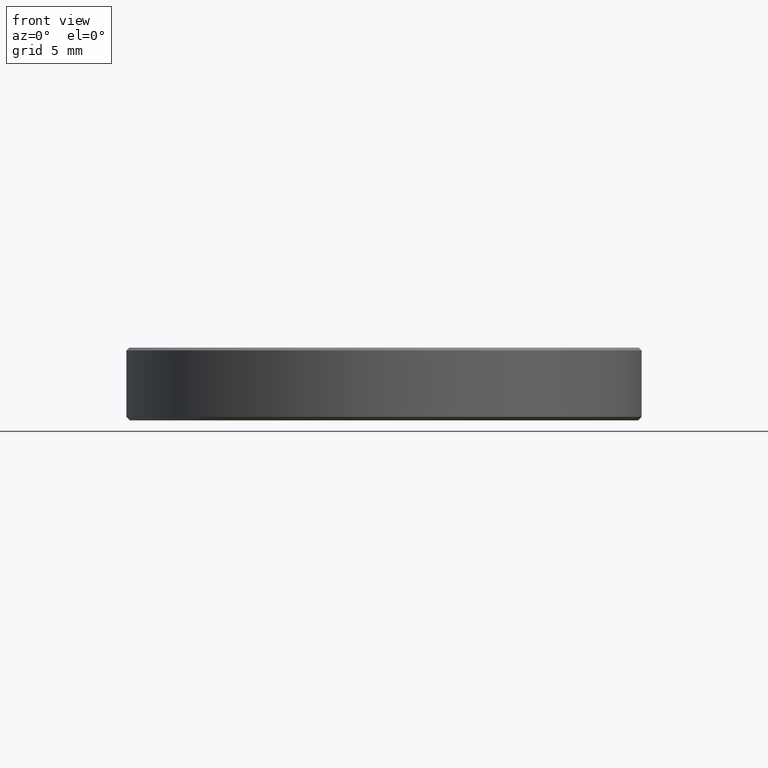
[diagram: clean part render]
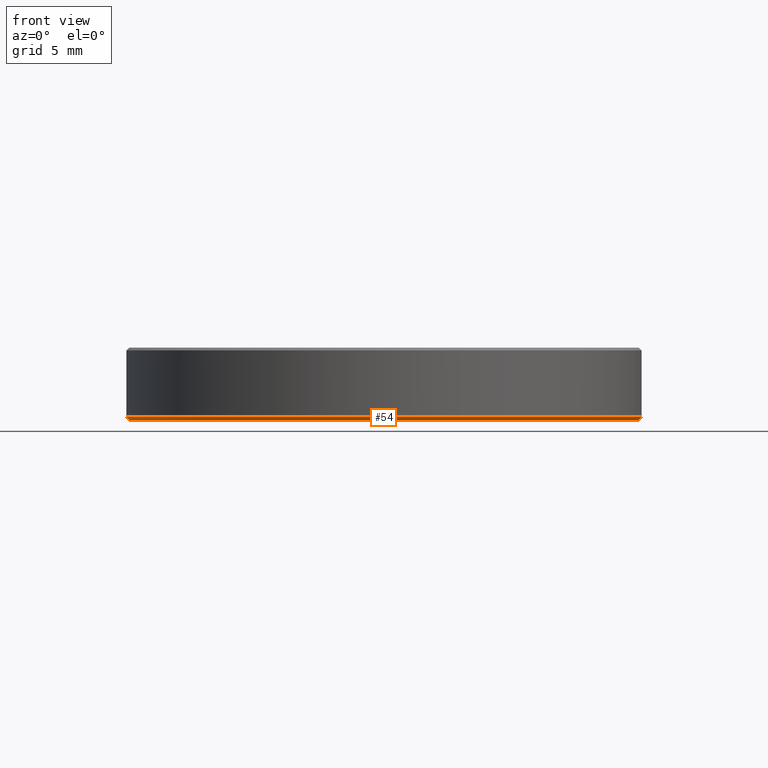
[diagram: same view with one face highlighted and labeled with its STEP entity id]
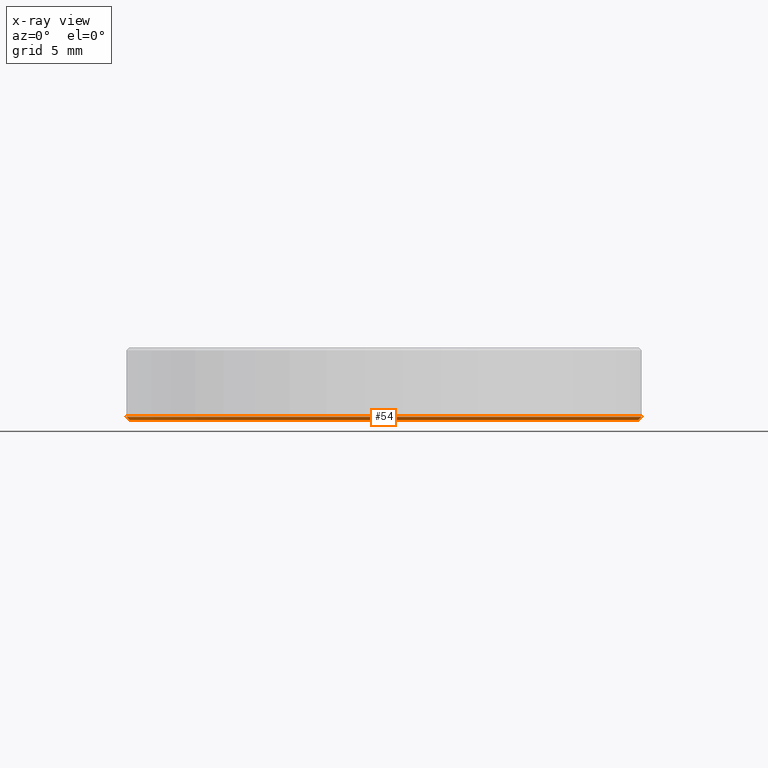
[diagram: x-ray of the same camera — body ghosted, the highlighted face saturated]
A machine part, front view. The second image highlights one B-rep face of the part: STEP entity #54.
The next image is the same camera in x-ray: the body ghosted, the highlighted face saturated — about 0% of this face is hidden behind the body in this view.
In plain terms, the highlighted conical surface has half-angle 45 deg.
Its self-contained STEP definition (entity closure, byte-faithful):
#9 = ORIENTED_EDGE ( 'NONE', *, *, #178, .F. ) ;
#10 = DIRECTION ( 'NONE',  ( 0.7071067811865475727, 0.000000000000000000, 0.7071067811865474617 ) ) ;
#17 = CARTESIAN_POINT ( 'NONE',  ( -15.00000000000000000, 1.836970198721029194E-15, 0.1999999999999944600 ) ) ;
#26 = VERTEX_POINT ( 'NONE', #258 ) ;
#27 = CARTESIAN_POINT ( 'NONE',  ( 15.00000000000000000, 0.000000000000000000, 0.1999999999999944600 ) ) ;
#36 = DIRECTION ( 'NONE',  ( 1.000000000000000000, 0.000000000000000000, 0.000000000000000000 ) ) ;
#51 = CARTESIAN_POINT ( 'NONE',  ( 14.80000000000000604, 0.000000000000000000, 9.184850993605147944E-16 ) ) ;
#52 = VERTEX_POINT ( 'NONE', #176 ) ;
#54 = ADVANCED_FACE ( 'NONE', ( #234 ), #198, .T. ) ;
#74 = DIRECTION ( 'NONE',  ( 1.000000000000000000, 0.000000000000000000, 0.000000000000000000 ) ) ;
#89 = VECTOR ( 'NONE', #10, 1000.000000000000000 ) ;
#93 = ORIENTED_EDGE ( 'NONE', *, *, #255, .T. ) ;
#94 = AXIS2_PLACEMENT_3D ( 'NONE', #110, #201, #36 ) ;
#101 = CARTESIAN_POINT ( 'NONE',  ( 0.000000000000000000, 0.000000000000000000, 0.1999999999999944600 ) ) ;
#110 = CARTESIAN_POINT ( 'NONE',  ( 0.000000000000000000, 0.000000000000000000, 9.184850993605147944E-16 ) ) ;
#137 = DIRECTION ( 'NONE',  ( -0.000000000000000000, -0.000000000000000000, 1.000000000000000000 ) ) ;
#140 = DIRECTION ( 'NONE',  ( -0.000000000000000000, -0.000000000000000000, 1.000000000000000000 ) ) ;
#144 = EDGE_CURVE ( 'NONE', #233, #179, #247, .T. ) ;
#145 = DIRECTION ( 'NONE',  ( 1.000000000000000000, 0.000000000000000000, 0.000000000000000000 ) ) ;
#158 = DIRECTION ( 'NONE',  ( -0.7071067811865475727, 8.659560562354931626E-17, 0.7071067811865474617 ) ) ;
#175 = LINE ( 'NONE', #17, #224 ) ;
#176 = CARTESIAN_POINT ( 'NONE',  ( -15.00000000000000000, 1.836970198721029589E-15, 0.1999999999999944600 ) ) ;
#178 = EDGE_CURVE ( 'NONE', #179, #52, #175, .T. ) ;
#179 = VERTEX_POINT ( 'NONE', #195 ) ;
#181 = LINE ( 'NONE', #27, #89 ) ;
#195 = CARTESIAN_POINT ( 'NONE',  ( -14.80000000000000604, 1.824723730729555837E-15, 9.184850993605147944E-16 ) ) ;
#198 = CONICAL_SURFACE ( 'NONE', #241, 15.00000000000000000, 0.7853981633974482790 ) ;
#201 = DIRECTION ( 'NONE',  ( 0.000000000000000000, 0.000000000000000000, -1.000000000000000000 ) ) ;
#207 = ORIENTED_EDGE ( 'NONE', *, *, #144, .F. ) ;
#208 = CARTESIAN_POINT ( 'NONE',  ( 0.000000000000000000, 0.000000000000000000, 0.1999999999999944600 ) ) ;
#224 = VECTOR ( 'NONE', #158, 1000.000000000000000 ) ;
#233 = VERTEX_POINT ( 'NONE', #51 ) ;
#234 = FACE_OUTER_BOUND ( 'NONE', #253, .T. ) ;
#235 = ORIENTED_EDGE ( 'NONE', *, *, #246, .F. ) ;
#241 = AXIS2_PLACEMENT_3D ( 'NONE', #101, #140, #145 ) ;
#242 = AXIS2_PLACEMENT_3D ( 'NONE', #208, #137, #74 ) ;
#246 = EDGE_CURVE ( 'NONE', #52, #26, #263, .T. ) ;
#247 = CIRCLE ( 'NONE', #94, 14.80000000000000604 ) ;
#253 = EDGE_LOOP ( 'NONE', ( #9, #207, #93, #235 ) ) ;
#255 = EDGE_CURVE ( 'NONE', #233, #26, #181, .T. ) ;
#258 = CARTESIAN_POINT ( 'NONE',  ( 15.00000000000000000, 0.000000000000000000, 0.1999999999999944600 ) ) ;
#263 = CIRCLE ( 'NONE', #242, 15.00000000000000000 ) ;